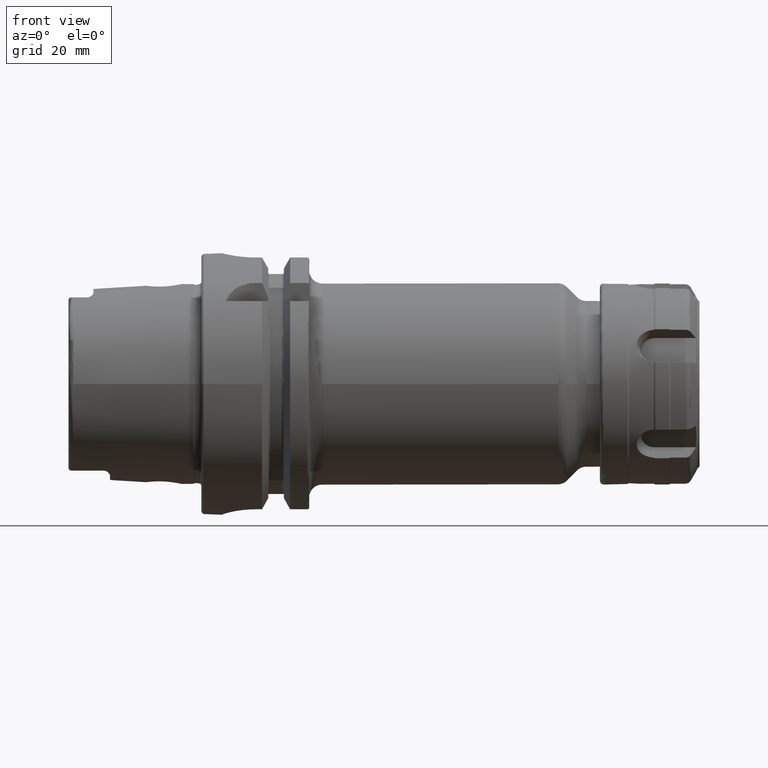
[diagram: clean part render]
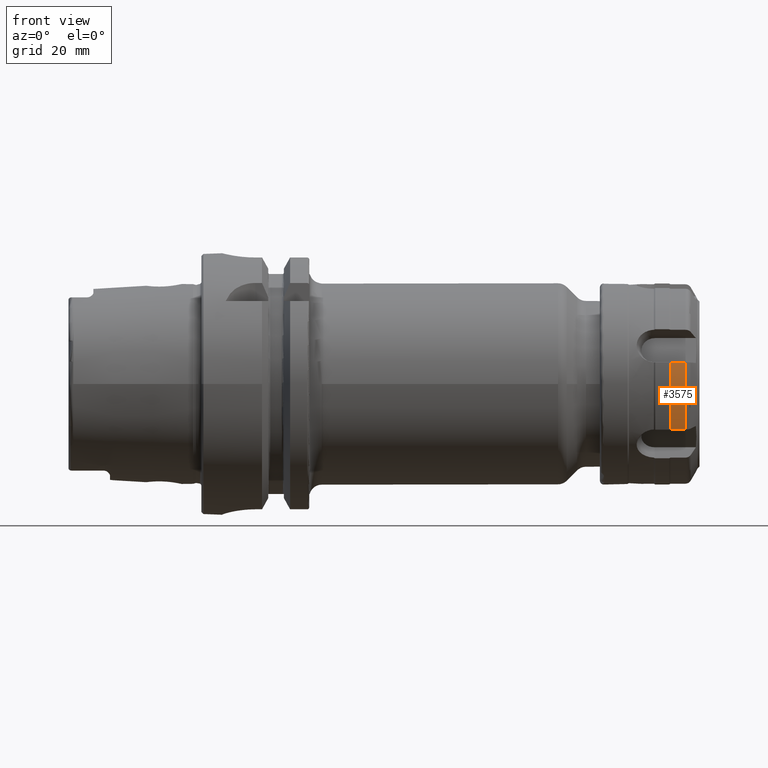
[diagram: same view with one face highlighted and labeled with its STEP entity id]
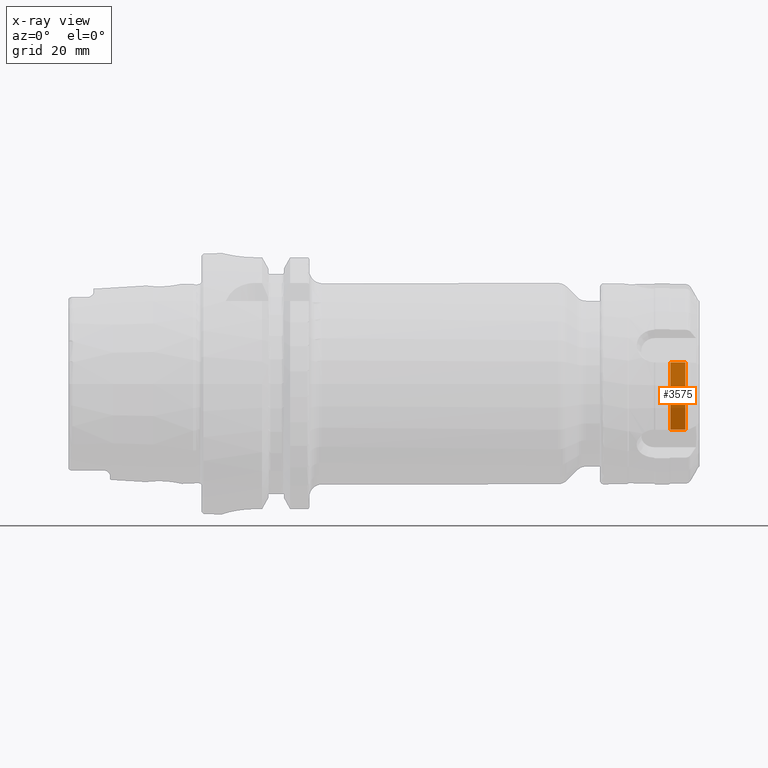
[diagram: x-ray of the same camera — body ghosted, the highlighted face saturated]
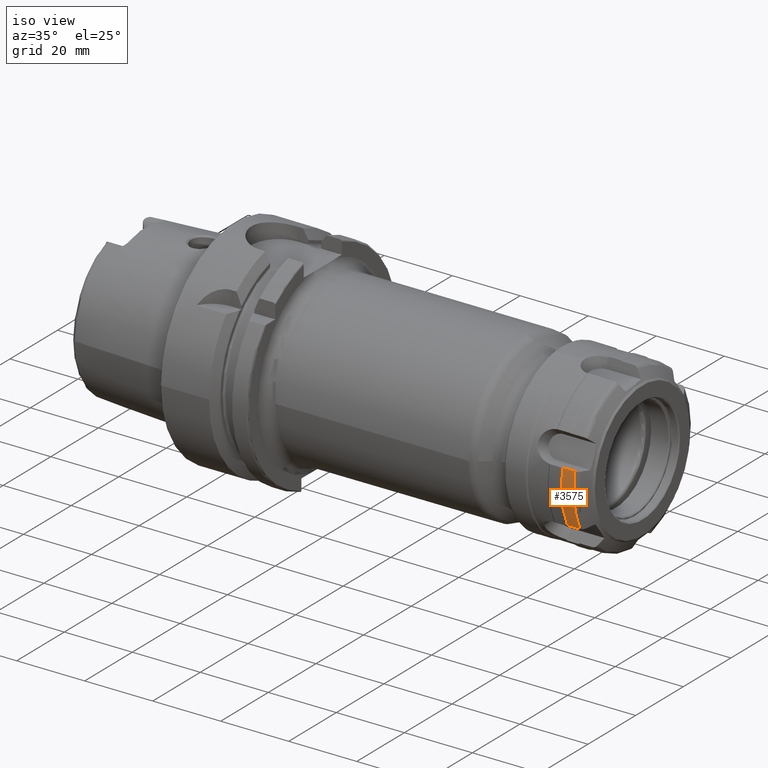
[diagram: same view with one face highlighted and labeled with its STEP entity id]
A machine part, front view. The second image highlights one B-rep face of the part: STEP entity #3575.
The next image is the same camera in x-ray: the body ghosted, the highlighted face saturated — about 0% of this face is hidden behind the body in this view.
A second angle (iso view) of the same face is appended — the face is thin or edge-on in the first view.
In plain terms, the highlighted cylindrical surface (partial cylindrical patch) has radius 24.05 mm, axis along (1, 0, 0).
Its self-contained STEP definition (entity closure, byte-faithful):
#340=CYLINDRICAL_SURFACE('',#4038,24.05);
#526=FACE_OUTER_BOUND('',#738,.T.);
#738=EDGE_LOOP('',(#3249,#3250,#3251,#3252));
#885=LINE('',#6707,#1071);
#894=LINE('',#6773,#1080);
#1071=VECTOR('',#4759,10.);
#1080=VECTOR('',#4776,10.);
#1326=CIRCLE('',#4037,24.05);
#1327=CIRCLE('',#4039,24.05);
#1582=VERTEX_POINT('',#6697);
#1583=VERTEX_POINT('',#6706);
#1597=VERTEX_POINT('',#6768);
#1598=VERTEX_POINT('',#6772);
#2059=EDGE_CURVE('',#1583,#1582,#885,.T.);
#2076=EDGE_CURVE('',#1598,#1597,#894,.T.);
#2219=EDGE_CURVE('',#1598,#1582,#1326,.T.);
#2220=EDGE_CURVE('',#1597,#1583,#1327,.T.);
#3249=ORIENTED_EDGE('',*,*,#2059,.T.);
#3250=ORIENTED_EDGE('',*,*,#2219,.F.);
#3251=ORIENTED_EDGE('',*,*,#2076,.T.);
#3252=ORIENTED_EDGE('',*,*,#2220,.T.);
#3575=ADVANCED_FACE('',(#526),#340,.T.);
#4037=AXIS2_PLACEMENT_3D('',#7289,#5016,#5017);
#4038=AXIS2_PLACEMENT_3D('',#7290,#5018,#5019);
#4039=AXIS2_PLACEMENT_3D('',#7291,#5020,#5021);
#4759=DIRECTION('',(1.,0.,0.));
#4776=DIRECTION('',(-1.,0.,0.));
#5016=DIRECTION('center_axis',(1.,0.,0.));
#5017=DIRECTION('ref_axis',(0.,-1.,1.83697019872103E-16));
#5018=DIRECTION('center_axis',(1.,0.,0.));
#5019=DIRECTION('ref_axis',(0.,1.,0.));
#5020=DIRECTION('center_axis',(1.,0.,0.));
#5021=DIRECTION('ref_axis',(0.,0.,-1.));
#6697=CARTESIAN_POINT('',(20.5843811405924,8.14729770751964,-22.6279482071408));
#6706=CARTESIAN_POINT('',(17.,8.14729770751964,-22.6279482071408));
#6707=CARTESIAN_POINT('',(19.2252032721884,8.14729770751964,-22.6279482071408));
#6768=CARTESIAN_POINT('',(17.,-8.14729770751967,-22.6279482071408));
#6772=CARTESIAN_POINT('',(20.5843811405924,-8.14729770751967,-22.6279482071408));
#6773=CARTESIAN_POINT('',(19.2252032721884,-8.14729770751967,-22.6279482071408));
#7289=CARTESIAN_POINT('Origin',(20.5843811405924,0.,0.));
#7290=CARTESIAN_POINT('Origin',(19.2252032721884,0.,0.));
#7291=CARTESIAN_POINT('Origin',(17.,0.,0.));